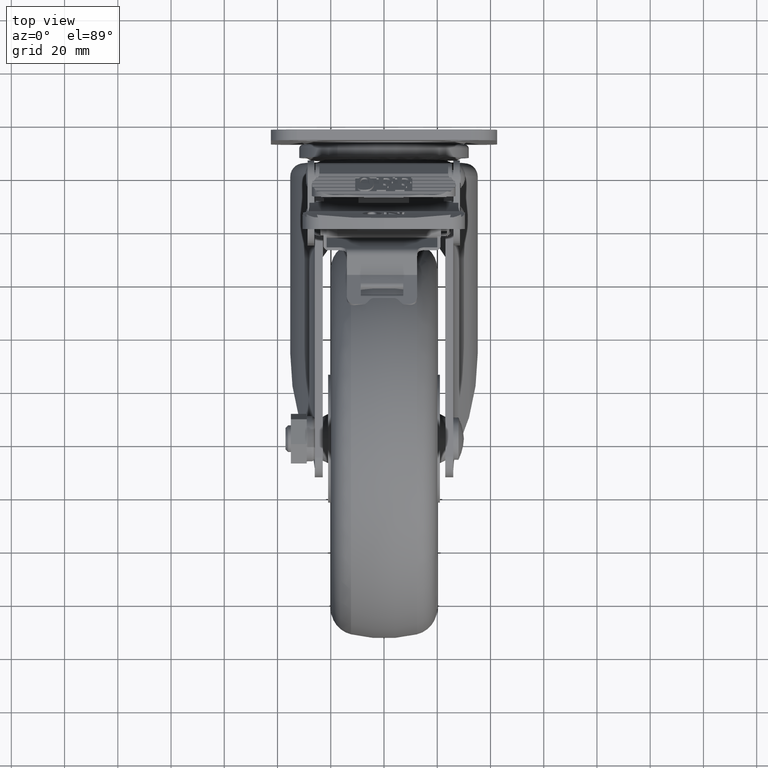
[diagram: clean part render]
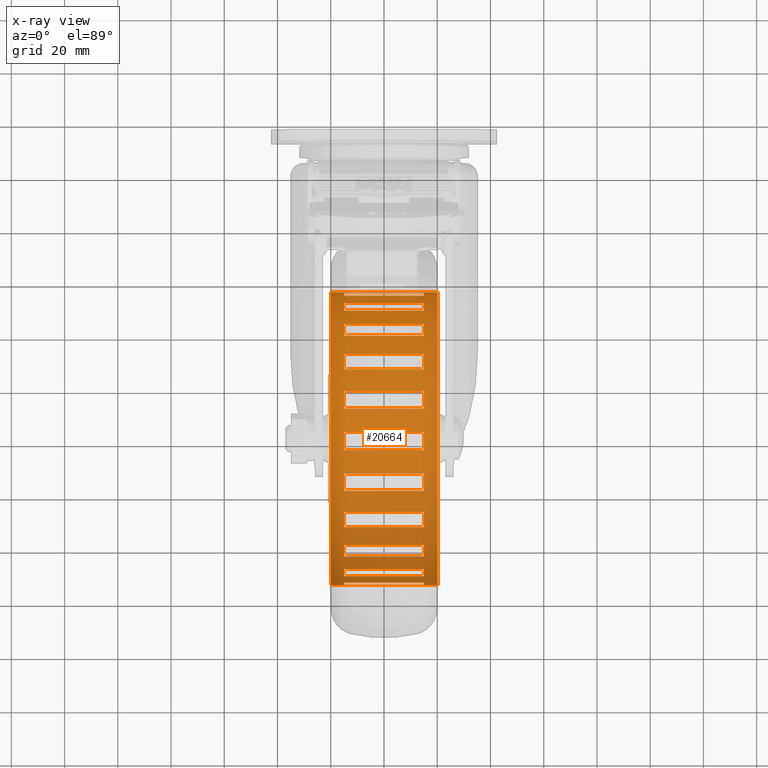
[diagram: x-ray — body ghosted, one internal face saturated and labeled with its STEP entity id]
A machine part, top view, then the same camera in x-ray: the body is ghosted and one INTERNAL B-rep face — a face not visible from any outside direction — is saturated and labeled: STEP entity #20664.
In plain terms, the highlighted cylindrical surface (partial cylindrical patch) has radius 55 mm, axis along (-1, -0, -0).
Its self-contained STEP definition (entity closure, byte-faithful):
#162 = CARTESIAN_POINT ( 'NONE',  ( 15.00000000000440000, -150.0118797441276400, 19.37380314463233700 ) ) ;
#260 = DIRECTION ( 'NONE',  ( 1.892425610156516600E-016, -1.000000000000000000, 0.0000000000000000000 ) ) ;
#293 = VERTEX_POINT ( 'NONE', #85384 ) ;
#298 = DIRECTION ( 'NONE',  ( -1.000000000000000000, -1.836970198721029700E-016, -0.0000000000000000000 ) ) ;
#792 = VERTEX_POINT ( 'NONE', #42565 ) ;
#947 = ORIENTED_EDGE ( 'NONE', *, *, #55617, .F. ) ;
#1113 = LINE ( 'NONE', #14931, #73403 ) ;
#1223 = DIRECTION ( 'NONE',  ( -1.000000000000000000, -1.836970198721030700E-016, -3.697785493223492300E-032 ) ) ;
#1334 = CARTESIAN_POINT ( 'NONE',  ( 15.00000000000438200, -50.13779242782970200, 13.28495078105055800 ) ) ;
#1574 = ORIENTED_EDGE ( 'NONE', *, *, #53724, .F. ) ;
#1778 = VECTOR ( 'NONE', #75460, 1000.000000000000000 ) ;
#1781 = ORIENTED_EDGE ( 'NONE', *, *, #21377, .T. ) ;
#2244 = CIRCLE ( 'NONE', #29645, 55.00000000000000700 ) ;
#2488 = CARTESIAN_POINT ( 'NONE',  ( 21.00100000000440300, -50.13779242782968000, 13.28495078105054700 ) ) ;
#2533 = CARTESIAN_POINT ( 'NONE',  ( -14.99999999999560000, -125.5490603879278800, -8.857795358108225200 ) ) ;
#4140 = VERTEX_POINT ( 'NONE', #78634 ) ;
#4559 = CARTESIAN_POINT ( 'NONE',  ( 20.00000000000439500, -98.68449323485782500, 39.13486066005969400 ) ) ;
#4709 = CARTESIAN_POINT ( 'NONE',  ( 15.00000000000438000, -47.35710672558816000, 19.37380314463195700 ) ) ;
#4746 = CARTESIAN_POINT ( 'NONE',  ( 15.00000000000439600, -131.1802041778447600, -5.238878987504816300 ) ) ;
#4958 = DIRECTION ( 'NONE',  ( -1.000000000000000000, -1.836970198721030700E-016, -0.0000000000000000000 ) ) ;
#5042 = CARTESIAN_POINT ( 'NONE',  ( -14.99999999999560500, -98.68449323485784000, 39.13486066005969400 ) ) ;
#5356 = ORIENTED_EDGE ( 'NONE', *, *, #62886, .T. ) ;
#5432 = CYLINDRICAL_SURFACE ( 'NONE', #35388, 54.99999999999999300 ) ;
#5730 = CARTESIAN_POINT ( 'NONE',  ( -14.99999999999560500, -98.68449323485784000, 39.13486066005969400 ) ) ;
#6051 = CARTESIAN_POINT ( 'NONE',  ( -24.87654320987217100, -43.68449323485784000, 39.13486066005970100 ) ) ;
#6292 = CIRCLE ( 'NONE', #65267, 54.99999999999999300 ) ;
#6329 = DIRECTION ( 'NONE',  ( -1.000000000000000000, -1.836970198721030700E-016, -3.697785493223492300E-032 ) ) ;
#7325 = CARTESIAN_POINT ( 'NONE',  ( -14.99999999999560500, -98.68449323485784000, 39.13486066005969400 ) ) ;
#7558 = DIRECTION ( 'NONE',  ( -1.000000000000000000, -1.836970198721029700E-016, -0.0000000000000000000 ) ) ;
#7654 = CARTESIAN_POINT ( 'NONE',  ( 15.00000000000439100, -98.68449323485782500, 39.13486066005969400 ) ) ;
#7699 = FACE_BOUND ( 'NONE', #60047, .T. ) ;
#7952 = DIRECTION ( 'NONE',  ( -1.000000000000000000, -1.836970198721029700E-016, -0.0000000000000000000 ) ) ;
#8095 = EDGE_CURVE ( 'NONE', #45110, #19245, #6292, .T. ) ;
#8221 = ORIENTED_EDGE ( 'NONE', *, *, #9146, .F. ) ;
#8532 = DIRECTION ( 'NONE',  ( -1.000000000000000000, -1.836970198721029700E-016, -4.930380657631323800E-032 ) ) ;
#8846 = DIRECTION ( 'NONE',  ( -1.000000000000000000, -1.836970198721029700E-016, -4.930380657631323800E-032 ) ) ;
#9007 = DIRECTION ( 'NONE',  ( -1.000000000000000000, -1.836970198721030200E-016, 0.0000000000000000000 ) ) ;
#9108 = LINE ( 'NONE', #29721, #83713 ) ;
#9146 = EDGE_CURVE ( 'NONE', #293, #26584, #59876, .T. ) ;
#9253 = CARTESIAN_POINT ( 'NONE',  ( 15.00000000000440000, -142.3654266847858300, 5.713668985570269100 ) ) ;
#9307 = ORIENTED_EDGE ( 'NONE', *, *, #72179, .T. ) ;
#9333 = CIRCLE ( 'NONE', #57280, 54.99999999999999300 ) ;
#9640 = AXIS2_PLACEMENT_3D ( 'NONE', #5730, #54828, #12829 ) ;
#9866 = FACE_BOUND ( 'NONE', #83191, .T. ) ;
#9906 = CARTESIAN_POINT ( 'NONE',  ( -19.99999999999561200, -98.68449323485784000, 39.13486066005969400 ) ) ;
#10002 = EDGE_LOOP ( 'NONE', ( #66506, #59372, #68349, #1781 ) ) ;
#10012 = VERTEX_POINT ( 'NONE', #40148 ) ;
#10055 = ORIENTED_EDGE ( 'NONE', *, *, #42030, .T. ) ;
#10147 = DIRECTION ( 'NONE',  ( -1.000000000000000000, -1.836970198721030200E-016, -1.232595164407830900E-032 ) ) ;
#10429 = CIRCLE ( 'NONE', #14948, 55.00000000000000700 ) ;
#11189 = EDGE_CURVE ( 'NONE', #24396, #88886, #67302, .T. ) ;
#11234 = DIRECTION ( 'NONE',  ( -1.000000000000000000, -1.836970198721029700E-016, -0.0000000000000000000 ) ) ;
#11355 = VERTEX_POINT ( 'NONE', #40790 ) ;
#11430 = VECTOR ( 'NONE', #77390, 1000.000000000000000 ) ;
#11644 = DIRECTION ( 'NONE',  ( 1.892425610156516600E-016, -1.000000000000000000, 0.0000000000000000000 ) ) ;
#11728 = DIRECTION ( 'NONE',  ( -1.000000000000000000, -1.836970198721029700E-016, -4.930380657631323800E-032 ) ) ;
#12124 = DIRECTION ( 'NONE',  ( 1.892425610156517100E-016, -1.000000000000000000, 0.0000000000000000000 ) ) ;
#12489 = CARTESIAN_POINT ( 'NONE',  ( -14.99999999999560900, -80.00661403997884200, -12.59653047512539300 ) ) ;
#12829 = DIRECTION ( 'NONE',  ( 1.892425610156517100E-016, -1.000000000000000000, 0.0000000000000000000 ) ) ;
#13321 = ORIENTED_EDGE ( 'NONE', *, *, #25475, .F. ) ;
#13496 = EDGE_CURVE ( 'NONE', #25515, #22453, #18386, .T. ) ;
#14218 = DIRECTION ( 'NONE',  ( -1.000000000000000000, -1.836970198721029700E-016, -0.0000000000000000000 ) ) ;
#14317 = FACE_BOUND ( 'NONE', #48131, .T. ) ;
#14398 = DIRECTION ( 'NONE',  ( 1.892425610156517100E-016, -1.000000000000000000, 0.0000000000000000000 ) ) ;
#14749 = DIRECTION ( 'NONE',  ( 1.892425610156516600E-016, -1.000000000000000000, 0.0000000000000000000 ) ) ;
#14815 = DIRECTION ( 'NONE',  ( -1.000000000000000000, -1.836970198721030400E-016, -9.860761315262647600E-032 ) ) ;
#14879 = EDGE_CURVE ( 'NONE', #50145, #60243, #43616, .T. ) ;
#14931 = CARTESIAN_POINT ( 'NONE',  ( 21.00100000000441400, -125.5490603879278500, -8.857795358108253600 ) ) ;
#14948 = AXIS2_PLACEMENT_3D ( 'NONE', #69970, #28087, #77076 ) ;
#14966 = ORIENTED_EDGE ( 'NONE', *, *, #34508, .F. ) ;
#15611 = CARTESIAN_POINT ( 'NONE',  ( 21.00100000000441400, -80.00661403997880000, -12.59653047512539300 ) ) ;
#15863 = VECTOR ( 'NONE', #8846, 1000.000000000000000 ) ;
#16344 = CARTESIAN_POINT ( 'NONE',  ( 15.00000000000439100, -98.68449323485782500, 39.13486066005969400 ) ) ;
#16554 = AXIS2_PLACEMENT_3D ( 'NONE', #7325, #56353, #14398 ) ;
#16907 = CARTESIAN_POINT ( 'NONE',  ( -14.99999999999560200, -131.1802041778447900, -5.238878987504843800 ) ) ;
#17018 = DIRECTION ( 'NONE',  ( 1.892425610156517100E-016, -1.000000000000000000, 0.0000000000000000000 ) ) ;
#17219 = CIRCLE ( 'NONE', #76179, 55.00000000000000700 ) ;
#17391 = CARTESIAN_POINT ( 'NONE',  ( -14.99999999999559600, -147.2311940418861700, 13.28495078105093300 ) ) ;
#18097 = CARTESIAN_POINT ( 'NONE',  ( 15.00000000000438600, -71.81992608178815400, -8.857795358108447200 ) ) ;
#18386 = LINE ( 'NONE', #41275, #72017 ) ;
#18492 = VERTEX_POINT ( 'NONE', #9253 ) ;
#18701 = CARTESIAN_POINT ( 'NONE',  ( -24.87654320987215300, -153.6844932348578300, 39.13486066005969400 ) ) ;
#18845 = CARTESIAN_POINT ( 'NONE',  ( 21.00100000000441000, -66.18878229187119200, -5.238878987505059600 ) ) ;
#18877 = ORIENTED_EDGE ( 'NONE', *, *, #22589, .T. ) ;
#18916 = EDGE_CURVE ( 'NONE', #49146, #10012, #31054, .T. ) ;
#18962 = ORIENTED_EDGE ( 'NONE', *, *, #62351, .F. ) ;
#19065 = ORIENTED_EDGE ( 'NONE', *, *, #32412, .F. ) ;
#19245 = VERTEX_POINT ( 'NONE', #25620 ) ;
#19661 = ORIENTED_EDGE ( 'NONE', *, *, #32287, .T. ) ;
#19818 = LINE ( 'NONE', #67871, #73395 ) ;
#20520 = CIRCLE ( 'NONE', #58432, 54.99999999999999300 ) ;
#20664 = ADVANCED_FACE ( 'NONE', ( #65784, #14317, #30810, #84475, #47224, #28599, #9866, #82259, #63630, #45035, #26369, #7699 ), #5432, .T. ) ;
#20776 = ORIENTED_EDGE ( 'NONE', *, *, #84513, .F. ) ;
#21377 = EDGE_CURVE ( 'NONE', #77672, #85580, #46545, .T. ) ;
#21432 = VERTEX_POINT ( 'NONE', #2533 ) ;
#21857 = AXIS2_PLACEMENT_3D ( 'NONE', #7654, #56708, #14749 ) ;
#22026 = CARTESIAN_POINT ( 'NONE',  ( 15.00000000000439500, -117.3623724297372300, -12.59653047512525200 ) ) ;
#22149 = DIRECTION ( 'NONE',  ( -1.000000000000000000, -1.836970198721029700E-016, -0.0000000000000000000 ) ) ;
#22453 = VERTEX_POINT ( 'NONE', #74930 ) ;
#22589 = EDGE_CURVE ( 'NONE', #47505, #86156, #44219, .T. ) ;
#22808 = AXIS2_PLACEMENT_3D ( 'NONE', #34061, #83008, #41107 ) ;
#23090 = VERTEX_POINT ( 'NONE', #76390 ) ;
#23418 = DIRECTION ( 'NONE',  ( 1.892425610156516600E-016, -1.000000000000000000, 0.0000000000000000000 ) ) ;
#23904 = VECTOR ( 'NONE', #52802, 1000.000000000000000 ) ;
#24326 = CARTESIAN_POINT ( 'NONE',  ( 21.00100000000441000, -95.33761647883081000, -15.76321231140230600 ) ) ;
#24396 = VERTEX_POINT ( 'NONE', #4709 ) ;
#24809 = EDGE_CURVE ( 'NONE', #32370, #45110, #88869, .T. ) ;
#25206 = CARTESIAN_POINT ( 'NONE',  ( -14.99999999999560500, -98.68449323485784000, 39.13486066005969400 ) ) ;
#25314 = ORIENTED_EDGE ( 'NONE', *, *, #52843, .T. ) ;
#25357 = CARTESIAN_POINT ( 'NONE',  ( 21.00100000000441400, -117.3623724297372300, -12.59653047512526000 ) ) ;
#25475 = EDGE_CURVE ( 'NONE', #26584, #89083, #67796, .T. ) ;
#25515 = VERTEX_POINT ( 'NONE', #82239 ) ;
#25516 = VECTOR ( 'NONE', #6329, 1000.000000000000000 ) ;
#25620 = CARTESIAN_POINT ( 'NONE',  ( -14.99999999999561100, -86.42922350190244200, -14.48237876694277700 ) ) ;
#25962 = LINE ( 'NONE', #24326, #46823 ) ;
#26369 = FACE_BOUND ( 'NONE', #62249, .T. ) ;
#26584 = VERTEX_POINT ( 'NONE', #43514 ) ;
#27081 = VECTOR ( 'NONE', #41750, 1000.000000000000000 ) ;
#27372 = EDGE_LOOP ( 'NONE', ( #1574, #53556, #90652, #55814 ) ) ;
#28087 = DIRECTION ( 'NONE',  ( -1.000000000000000000, -1.836970198721029700E-016, -0.0000000000000000000 ) ) ;
#28555 = ORIENTED_EDGE ( 'NONE', *, *, #24809, .T. ) ;
#28599 = FACE_BOUND ( 'NONE', #55733, .T. ) ;
#28732 = DIRECTION ( 'NONE',  ( -1.000000000000000000, -1.836970198721030400E-016, -4.930380657631323800E-032 ) ) ;
#28875 = EDGE_CURVE ( 'NONE', #69399, #46896, #82714, .T. ) ;
#29645 = AXIS2_PLACEMENT_3D ( 'NONE', #33582, #82532, #40629 ) ;
#29651 = ORIENTED_EDGE ( 'NONE', *, *, #8095, .T. ) ;
#29654 = EDGE_CURVE ( 'NONE', #86156, #60243, #62416, .T. ) ;
#29721 = CARTESIAN_POINT ( 'NONE',  ( 21.00100000000441400, -102.0313699908852500, -15.76321231140228500 ) ) ;
#30810 = FACE_BOUND ( 'NONE', #32856, .T. ) ;
#31054 = LINE ( 'NONE', #34336, #84738 ) ;
#31139 = EDGE_CURVE ( 'NONE', #61541, #66189, #58924, .T. ) ;
#31871 = CARTESIAN_POINT ( 'NONE',  ( -14.99999999999560500, -98.68449323485784000, 39.13486066005969400 ) ) ;
#32078 = LINE ( 'NONE', #18845, #67055 ) ;
#32181 = DIRECTION ( 'NONE',  ( -1.000000000000000000, -1.836970198721029700E-016, -0.0000000000000000000 ) ) ;
#32267 = DIRECTION ( 'NONE',  ( 1.892425610156517100E-016, -1.000000000000000000, 0.0000000000000000000 ) ) ;
#32287 = EDGE_CURVE ( 'NONE', #90042, #53590, #68498, .T. ) ;
#32370 = VERTEX_POINT ( 'NONE', #55327 ) ;
#32404 = DIRECTION ( 'NONE',  ( -1.000000000000000000, -1.836970198721030400E-016, -4.930380657631323800E-032 ) ) ;
#32412 = EDGE_CURVE ( 'NONE', #25515, #23090, #10429, .T. ) ;
#32487 = VERTEX_POINT ( 'NONE', #22026 ) ;
#32542 = CARTESIAN_POINT ( 'NONE',  ( -14.99999999999560500, -117.3623724297372300, -12.59653047512526000 ) ) ;
#32856 = EDGE_LOOP ( 'NONE', ( #87250, #18877, #85116, #63199 ) ) ;
#33032 = VECTOR ( 'NONE', #8532, 1000.000000000000000 ) ;
#33233 = CARTESIAN_POINT ( 'NONE',  ( -14.99999999999561400, -47.35710672558818900, 19.37380314463193500 ) ) ;
#33308 = CIRCLE ( 'NONE', #38480, 54.99999999999999300 ) ;
#33524 = ORIENTED_EDGE ( 'NONE', *, *, #56445, .F. ) ;
#33582 = CARTESIAN_POINT ( 'NONE',  ( 15.00000000000439100, -98.68449323485782500, 39.13486066005969400 ) ) ;
#33774 = ORIENTED_EDGE ( 'NONE', *, *, #43002, .T. ) ;
#33852 = EDGE_LOOP ( 'NONE', ( #66256, #85739, #19065, #64495 ) ) ;
#34061 = CARTESIAN_POINT ( 'NONE',  ( 15.00000000000439100, -98.68449323485782500, 39.13486066005969400 ) ) ;
#34336 = CARTESIAN_POINT ( 'NONE',  ( 21.00100000000440300, -44.82151371401528900, 28.00923990716241400 ) ) ;
#34508 = EDGE_CURVE ( 'NONE', #11355, #32487, #64817, .T. ) ;
#34996 = EDGE_LOOP ( 'NONE', ( #73373, #40329, #10055, #69739 ) ) ;
#35388 = AXIS2_PLACEMENT_3D ( 'NONE', #84493, #7558, #56608 ) ;
#35690 = CARTESIAN_POINT ( 'NONE',  ( 21.00100000000441000, -86.42922350190244200, -14.48237876694277700 ) ) ;
#35938 = LINE ( 'NONE', #70736, #54446 ) ;
#36059 = DIRECTION ( 'NONE',  ( -1.000000000000000000, -1.836970198721029700E-016, -0.0000000000000000000 ) ) ;
#36669 = CARTESIAN_POINT ( 'NONE',  ( -14.99999999999559500, -152.5474727557004500, 28.00923990716283300 ) ) ;
#37313 = DIRECTION ( 'NONE',  ( -1.000000000000000000, -1.836970198721029700E-016, -0.0000000000000000000 ) ) ;
#37557 = CARTESIAN_POINT ( 'NONE',  ( 20.00000000000440500, -153.6844932348578300, 39.13486066005969400 ) ) ;
#38480 = AXIS2_PLACEMENT_3D ( 'NONE', #79212, #37313, #86264 ) ;
#38659 = CARTESIAN_POINT ( 'NONE',  ( 15.00000000000437900, -137.9819503470330600, 0.6548676180027426200 ) ) ;
#38939 = DIRECTION ( 'NONE',  ( 1.892425610156517100E-016, -1.000000000000000000, 0.0000000000000000000 ) ) ;
#39071 = CARTESIAN_POINT ( 'NONE',  ( 21.00100000000442100, -131.1802041778447900, -5.238878987504843800 ) ) ;
#39140 = LINE ( 'NONE', #81987, #1778 ) ;
#39223 = VECTOR ( 'NONE', #84630, 1000.000000000000000 ) ;
#39367 = CIRCLE ( 'NONE', #81772, 54.99999999999999300 ) ;
#39946 = ORIENTED_EDGE ( 'NONE', *, *, #31139, .F. ) ;
#40108 = AXIS2_PLACEMENT_3D ( 'NONE', #4559, #53646, #11644 ) ;
#40148 = CARTESIAN_POINT ( 'NONE',  ( -14.99999999999562000, -44.82151371401529600, 28.00923990716241400 ) ) ;
#40329 = ORIENTED_EDGE ( 'NONE', *, *, #11189, .T. ) ;
#40629 = DIRECTION ( 'NONE',  ( 1.892425610156516600E-016, -1.000000000000000000, 0.0000000000000000000 ) ) ;
#40790 = CARTESIAN_POINT ( 'NONE',  ( 15.00000000000438400, -110.9397629678136200, -14.48237876694268800 ) ) ;
#41107 = DIRECTION ( 'NONE',  ( 1.892425610156516600E-016, -1.000000000000000000, 0.0000000000000000000 ) ) ;
#41275 = CARTESIAN_POINT ( 'NONE',  ( 21.00100000000440300, -55.00355978493006100, 5.713668985569943200 ) ) ;
#41295 = DIRECTION ( 'NONE',  ( -1.000000000000000000, -1.836970198721029700E-016, -0.0000000000000000000 ) ) ;
#41435 = DIRECTION ( 'NONE',  ( -1.000000000000000000, -1.836970198721029700E-016, -0.0000000000000000000 ) ) ;
#41750 = DIRECTION ( 'NONE',  ( -1.000000000000000000, -1.836970198721030400E-016, 0.0000000000000000000 ) ) ;
#41802 = VERTEX_POINT ( 'NONE', #75508 ) ;
#41985 = CARTESIAN_POINT ( 'NONE',  ( 15.00000000000438000, -44.82151371401530300, 28.00923990716241400 ) ) ;
#42030 = EDGE_CURVE ( 'NONE', #88886, #52253, #33308, .T. ) ;
#42325 = EDGE_CURVE ( 'NONE', #11355, #90042, #90182, .T. ) ;
#42379 = DIRECTION ( 'NONE',  ( -1.000000000000000000, -1.836970198721029700E-016, -0.0000000000000000000 ) ) ;
#42420 = CARTESIAN_POINT ( 'NONE',  ( 15.00000000000439100, -98.68449323485782500, 39.13486066005969400 ) ) ;
#42565 = CARTESIAN_POINT ( 'NONE',  ( -14.99999999999560500, -95.33761647883083900, -15.76321231140229900 ) ) ;
#42714 = EDGE_CURVE ( 'NONE', #22453, #60240, #68172, .T. ) ;
#43002 = EDGE_CURVE ( 'NONE', #69399, #71432, #32078, .T. ) ;
#43336 = CARTESIAN_POINT ( 'NONE',  ( 15.00000000000438400, -95.33761647883081000, -15.76321231140230600 ) ) ;
#43514 = CARTESIAN_POINT ( 'NONE',  ( 15.00000000000440200, -153.5000932042096300, 34.63486066005970800 ) ) ;
#43616 = LINE ( 'NONE', #90945, #27081 ) ;
#43810 = EDGE_CURVE ( 'NONE', #75543, #43896, #79063, .T. ) ;
#43861 = DIRECTION ( 'NONE',  ( -1.000000000000000000, -1.836970198721030400E-016, -9.860761315262647600E-032 ) ) ;
#43896 = VERTEX_POINT ( 'NONE', #73873 ) ;
#44219 = LINE ( 'NONE', #90269, #25516 ) ;
#44547 = EDGE_CURVE ( 'NONE', #47505, #50145, #45010, .T. ) ;
#44885 = AXIS2_PLACEMENT_3D ( 'NONE', #5042, #54119, #12124 ) ;
#44964 = LINE ( 'NONE', #18701, #79987 ) ;
#45010 = CIRCLE ( 'NONE', #22808, 55.00000000000000700 ) ;
#45035 = FACE_BOUND ( 'NONE', #33852, .T. ) ;
#45110 = VERTEX_POINT ( 'NONE', #12489 ) ;
#45488 = CIRCLE ( 'NONE', #87272, 55.00000000000000700 ) ;
#46175 = LINE ( 'NONE', #25357, #62561 ) ;
#46545 = LINE ( 'NONE', #58056, #67262 ) ;
#46637 = EDGE_CURVE ( 'NONE', #55961, #49146, #17219, .T. ) ;
#46759 = CARTESIAN_POINT ( 'NONE',  ( 21.00100000000442100, -153.5000932042096600, 34.63486066005970800 ) ) ;
#46823 = VECTOR ( 'NONE', #73216, 1000.000000000000000 ) ;
#46896 = VERTEX_POINT ( 'NONE', #18097 ) ;
#47224 = FACE_BOUND ( 'NONE', #54683, .T. ) ;
#47274 = CARTESIAN_POINT ( 'NONE',  ( -14.99999999999561600, -59.38703612268288600, 0.6548676180024790600 ) ) ;
#47505 = VERTEX_POINT ( 'NONE', #77571 ) ;
#48131 = EDGE_LOOP ( 'NONE', ( #50877, #13321, #8221, #53872 ) ) ;
#48697 = CARTESIAN_POINT ( 'NONE',  ( -14.99999999999561400, -71.81992608178816800, -8.857795358108447200 ) ) ;
#49146 = VERTEX_POINT ( 'NONE', #41985 ) ;
#49419 = DIRECTION ( 'NONE',  ( 1.892425610156516600E-016, -1.000000000000000000, 0.0000000000000000000 ) ) ;
#49901 = VERTEX_POINT ( 'NONE', #59689 ) ;
#49987 = CARTESIAN_POINT ( 'NONE',  ( -14.99999999999560500, -98.68449323485784000, 39.13486066005969400 ) ) ;
#50145 = VERTEX_POINT ( 'NONE', #162 ) ;
#50170 = VECTOR ( 'NONE', #41435, 1000.000000000000000 ) ;
#50715 = AXIS2_PLACEMENT_3D ( 'NONE', #61620, #61512, #61399 ) ;
#50877 = ORIENTED_EDGE ( 'NONE', *, *, #78971, .T. ) ;
#51082 = VERTEX_POINT ( 'NONE', #55225 ) ;
#52253 = VERTEX_POINT ( 'NONE', #56262 ) ;
#52563 = EDGE_CURVE ( 'NONE', #41802, #61541, #2244, .T. ) ;
#52802 = DIRECTION ( 'NONE',  ( -1.000000000000000000, -1.836970198721030200E-016, 0.0000000000000000000 ) ) ;
#52843 = EDGE_CURVE ( 'NONE', #41802, #21432, #1113, .T. ) ;
#53098 = LINE ( 'NONE', #85788, #15863 ) ;
#53235 = CARTESIAN_POINT ( 'NONE',  ( 15.00000000000439100, -98.68449323485782500, 39.13486066005969400 ) ) ;
#53556 = ORIENTED_EDGE ( 'NONE', *, *, #87858, .T. ) ;
#53590 = VERTEX_POINT ( 'NONE', #32542 ) ;
#53646 = DIRECTION ( 'NONE',  ( -1.000000000000000000, -1.836970198721029700E-016, -0.0000000000000000000 ) ) ;
#53724 = EDGE_CURVE ( 'NONE', #80926, #75543, #68679, .T. ) ;
#53872 = ORIENTED_EDGE ( 'NONE', *, *, #74083, .T. ) ;
#54119 = DIRECTION ( 'NONE',  ( -1.000000000000000000, -1.836970198721029700E-016, -0.0000000000000000000 ) ) ;
#54446 = VECTOR ( 'NONE', #1223, 1000.000000000000000 ) ;
#54678 = AXIS2_PLACEMENT_3D ( 'NONE', #49987, #7952, #57009 ) ;
#54683 = EDGE_LOOP ( 'NONE', ( #29651, #18962, #86121, #28555 ) ) ;
#54828 = DIRECTION ( 'NONE',  ( -1.000000000000000000, -1.836970198721029700E-016, -0.0000000000000000000 ) ) ;
#55225 = CARTESIAN_POINT ( 'NONE',  ( 15.00000000000438900, -86.42922350190244200, -14.48237876694276900 ) ) ;
#55327 = CARTESIAN_POINT ( 'NONE',  ( 15.00000000000438000, -80.00661403997880000, -12.59653047512539300 ) ) ;
#55617 = EDGE_CURVE ( 'NONE', #67893, #49901, #45488, .T. ) ;
#55699 = CARTESIAN_POINT ( 'NONE',  ( -19.99999999999562300, -43.68449323485784000, 39.13486066005970100 ) ) ;
#55733 = EDGE_LOOP ( 'NONE', ( #947, #85371, #60178, #33524 ) ) ;
#55764 = EDGE_CURVE ( 'NONE', #23090, #60240, #53098, .T. ) ;
#55814 = ORIENTED_EDGE ( 'NONE', *, *, #43810, .F. ) ;
#55961 = VERTEX_POINT ( 'NONE', #67584 ) ;
#56172 = CARTESIAN_POINT ( 'NONE',  ( -14.99999999999560500, -98.68449323485784000, 39.13486066005969400 ) ) ;
#56262 = CARTESIAN_POINT ( 'NONE',  ( -14.99999999999561800, -50.13779242782968700, 13.28495078105054700 ) ) ;
#56353 = DIRECTION ( 'NONE',  ( -1.000000000000000000, -1.836970198721029700E-016, -0.0000000000000000000 ) ) ;
#56445 = EDGE_CURVE ( 'NONE', #49901, #4140, #9108, .T. ) ;
#56608 = DIRECTION ( 'NONE',  ( 1.892425610156517100E-016, -1.000000000000000000, 0.0000000000000000000 ) ) ;
#56708 = DIRECTION ( 'NONE',  ( -1.000000000000000000, -1.836970198721029700E-016, -0.0000000000000000000 ) ) ;
#57009 = DIRECTION ( 'NONE',  ( 1.892425610156517100E-016, -1.000000000000000000, 0.0000000000000000000 ) ) ;
#57225 = VERTEX_POINT ( 'NONE', #67419 ) ;
#57280 = AXIS2_PLACEMENT_3D ( 'NONE', #31871, #80858, #38939 ) ;
#58056 = CARTESIAN_POINT ( 'NONE',  ( 21.00100000000442100, -137.9819503470330600, 0.6548676180027426200 ) ) ;
#58432 = AXIS2_PLACEMENT_3D ( 'NONE', #74019, #32181, #81148 ) ;
#58924 = LINE ( 'NONE', #39071, #23904 ) ;
#58977 = DIRECTION ( 'NONE',  ( -1.000000000000000000, -1.836970198721029700E-016, -0.0000000000000000000 ) ) ;
#59295 = ORIENTED_EDGE ( 'NONE', *, *, #18916, .F. ) ;
#59372 = ORIENTED_EDGE ( 'NONE', *, *, #63569, .F. ) ;
#59689 = CARTESIAN_POINT ( 'NONE',  ( 15.00000000000439100, -102.0313699908852500, -15.76321231140227800 ) ) ;
#59876 = CIRCLE ( 'NONE', #50715, 55.00000000000000700 ) ;
#60047 = EDGE_LOOP ( 'NONE', ( #19661, #20776, #14966, #74265 ) ) ;
#60178 = ORIENTED_EDGE ( 'NONE', *, *, #68557, .T. ) ;
#60240 = VERTEX_POINT ( 'NONE', #47274 ) ;
#60243 = VERTEX_POINT ( 'NONE', #68286 ) ;
#60270 = DIRECTION ( 'NONE',  ( 1.892425610156516600E-016, -1.000000000000000000, 0.0000000000000000000 ) ) ;
#60810 = CARTESIAN_POINT ( 'NONE',  ( -14.99999999999560000, -142.3654266847858600, 5.713668985570255800 ) ) ;
#60866 = DIRECTION ( 'NONE',  ( -1.000000000000000000, -1.836970198721030400E-016, 0.0000000000000000000 ) ) ;
#61187 = CARTESIAN_POINT ( 'NONE',  ( -14.99999999999560400, -110.9397629678136500, -14.48237876694267400 ) ) ;
#61399 = DIRECTION ( 'NONE',  ( 1.892425610156516600E-016, -1.000000000000000000, 0.0000000000000000000 ) ) ;
#61512 = DIRECTION ( 'NONE',  ( -1.000000000000000000, -1.836970198721029700E-016, -0.0000000000000000000 ) ) ;
#61541 = VERTEX_POINT ( 'NONE', #4746 ) ;
#61620 = CARTESIAN_POINT ( 'NONE',  ( 15.00000000000439100, -98.68449323485782500, 39.13486066005969400 ) ) ;
#62127 = CARTESIAN_POINT ( 'NONE',  ( -14.99999999999559800, -137.9819503470330600, 0.6548676180027843700 ) ) ;
#62249 = EDGE_LOOP ( 'NONE', ( #78830, #25314, #9307, #39946 ) ) ;
#62351 = EDGE_CURVE ( 'NONE', #51082, #19245, #72000, .T. ) ;
#62416 = CIRCLE ( 'NONE', #16554, 54.99999999999999300 ) ;
#62561 = VECTOR ( 'NONE', #32404, 1000.000000000000000 ) ;
#62643 = DIRECTION ( 'NONE',  ( -1.000000000000000000, -1.836970198721029700E-016, -0.0000000000000000000 ) ) ;
#62886 = EDGE_CURVE ( 'NONE', #55961, #57225, #39140, .T. ) ;
#63199 = ORIENTED_EDGE ( 'NONE', *, *, #14879, .F. ) ;
#63242 = DIRECTION ( 'NONE',  ( 1.892425610156517100E-016, -1.000000000000000000, 0.0000000000000000000 ) ) ;
#63339 = CARTESIAN_POINT ( 'NONE',  ( -14.99999999999561100, -66.18878229187123500, -5.238878987505065900 ) ) ;
#63416 = AXIS2_PLACEMENT_3D ( 'NONE', #25206, #74116, #32267 ) ;
#63569 = EDGE_CURVE ( 'NONE', #18492, #90409, #35938, .T. ) ;
#63630 = FACE_BOUND ( 'NONE', #79844, .T. ) ;
#63816 = EDGE_CURVE ( 'NONE', #71432, #77881, #20520, .T. ) ;
#64013 = CARTESIAN_POINT ( 'NONE',  ( -14.99999999999560500, -98.68449323485784000, 39.13486066005969400 ) ) ;
#64495 = ORIENTED_EDGE ( 'NONE', *, *, #13496, .T. ) ;
#64611 = AXIS2_PLACEMENT_3D ( 'NONE', #56172, #14218, #63242 ) ;
#64817 = CIRCLE ( 'NONE', #73067, 55.00000000000000700 ) ;
#65210 = CARTESIAN_POINT ( 'NONE',  ( 20.00000000000438400, -43.68449323485781800, 39.13486066005970100 ) ) ;
#65267 = AXIS2_PLACEMENT_3D ( 'NONE', #67811, #62643, #68389 ) ;
#65288 = DIRECTION ( 'NONE',  ( -1.000000000000000000, -1.836970198721029700E-016, -0.0000000000000000000 ) ) ;
#65492 = AXIS2_PLACEMENT_3D ( 'NONE', #9906, #58977, #17018 ) ;
#65784 = FACE_OUTER_BOUND ( 'NONE', #27372, .T. ) ;
#66143 = AXIS2_PLACEMENT_3D ( 'NONE', #83204, #41295, #90194 ) ;
#66189 = VERTEX_POINT ( 'NONE', #16907 ) ;
#66256 = ORIENTED_EDGE ( 'NONE', *, *, #42714, .T. ) ;
#66506 = ORIENTED_EDGE ( 'NONE', *, *, #89943, .T. ) ;
#67055 = VECTOR ( 'NONE', #11728, 1000.000000000000000 ) ;
#67262 = VECTOR ( 'NONE', #9007, 1000.000000000000000 ) ;
#67302 = LINE ( 'NONE', #74181, #11430 ) ;
#67419 = CARTESIAN_POINT ( 'NONE',  ( -14.99999999999562000, -43.86889326550603800, 34.63486066005971500 ) ) ;
#67488 = VERTEX_POINT ( 'NONE', #37557 ) ;
#67530 = CIRCLE ( 'NONE', #66143, 55.00000000000000700 ) ;
#67584 = CARTESIAN_POINT ( 'NONE',  ( 15.00000000000440200, -43.86889326550603100, 34.63486066005971500 ) ) ;
#67620 = DIRECTION ( 'NONE',  ( -1.000000000000000000, -1.836970198721029700E-016, -0.0000000000000000000 ) ) ;
#67796 = LINE ( 'NONE', #46759, #84325 ) ;
#67811 = CARTESIAN_POINT ( 'NONE',  ( -14.99999999999560500, -98.68449323485784000, 39.13486066005969400 ) ) ;
#67871 = CARTESIAN_POINT ( 'NONE',  ( 21.00100000000442400, -152.5474727557004500, 28.00923990716280100 ) ) ;
#67893 = VERTEX_POINT ( 'NONE', #43336 ) ;
#68132 = VECTOR ( 'NONE', #89770, 1000.000000000000000 ) ;
#68172 = CIRCLE ( 'NONE', #9640, 54.99999999999999300 ) ;
#68286 = CARTESIAN_POINT ( 'NONE',  ( -14.99999999999560000, -150.0118797441276700, 19.37380314463233000 ) ) ;
#68349 = ORIENTED_EDGE ( 'NONE', *, *, #80068, .F. ) ;
#68389 = DIRECTION ( 'NONE',  ( 1.892425610156517100E-016, -1.000000000000000000, 0.0000000000000000000 ) ) ;
#68498 = CIRCLE ( 'NONE', #44885, 54.99999999999999300 ) ;
#68557 = EDGE_CURVE ( 'NONE', #792, #4140, #71660, .T. ) ;
#68679 = LINE ( 'NONE', #6051, #50170 ) ;
#69158 = ORIENTED_EDGE ( 'NONE', *, *, #86913, .F. ) ;
#69307 = VECTOR ( 'NONE', #14815, 1000.000000000000000 ) ;
#69399 = VERTEX_POINT ( 'NONE', #86004 ) ;
#69739 = ORIENTED_EDGE ( 'NONE', *, *, #80484, .F. ) ;
#69970 = CARTESIAN_POINT ( 'NONE',  ( 15.00000000000439100, -98.68449323485782500, 39.13486066005969400 ) ) ;
#70736 = CARTESIAN_POINT ( 'NONE',  ( 21.00100000000442400, -142.3654266847858600, 5.713668985570255800 ) ) ;
#70882 = ORIENTED_EDGE ( 'NONE', *, *, #87003, .T. ) ;
#71024 = DIRECTION ( 'NONE',  ( 1.892425610156517100E-016, -1.000000000000000000, 0.0000000000000000000 ) ) ;
#71432 = VERTEX_POINT ( 'NONE', #63339 ) ;
#71660 = CIRCLE ( 'NONE', #63416, 54.99999999999999300 ) ;
#71755 = ORIENTED_EDGE ( 'NONE', *, *, #46637, .F. ) ;
#72000 = LINE ( 'NONE', #35690, #39223 ) ;
#72017 = VECTOR ( 'NONE', #90174, 1000.000000000000000 ) ;
#72179 = EDGE_CURVE ( 'NONE', #21432, #66189, #39367, .T. ) ;
#73067 = AXIS2_PLACEMENT_3D ( 'NONE', #16344, #65288, #23418 ) ;
#73216 = DIRECTION ( 'NONE',  ( -1.000000000000000000, -1.836970198721030200E-016, -4.930380657631323800E-032 ) ) ;
#73373 = ORIENTED_EDGE ( 'NONE', *, *, #74013, .F. ) ;
#73395 = VECTOR ( 'NONE', #60866, 1000.000000000000000 ) ;
#73403 = VECTOR ( 'NONE', #28732, 1000.000000000000000 ) ;
#73413 = EDGE_CURVE ( 'NONE', #67893, #792, #25962, .T. ) ;
#73873 = CARTESIAN_POINT ( 'NONE',  ( -19.99999999999560200, -153.6844932348578300, 39.13486066005969400 ) ) ;
#74013 = EDGE_CURVE ( 'NONE', #24396, #76267, #82266, .T. ) ;
#74019 = CARTESIAN_POINT ( 'NONE',  ( -14.99999999999560500, -98.68449323485784000, 39.13486066005969400 ) ) ;
#74083 = EDGE_CURVE ( 'NONE', #293, #83259, #19818, .T. ) ;
#74116 = DIRECTION ( 'NONE',  ( -1.000000000000000000, -1.836970198721029700E-016, -0.0000000000000000000 ) ) ;
#74181 = CARTESIAN_POINT ( 'NONE',  ( 21.00100000000440300, -47.35710672558816000, 19.37380314463195700 ) ) ;
#74265 = ORIENTED_EDGE ( 'NONE', *, *, #42325, .T. ) ;
#74722 = LINE ( 'NONE', #82755, #68132 ) ;
#74930 = CARTESIAN_POINT ( 'NONE',  ( -14.99999999999561400, -55.00355978493010400, 5.713668985569936100 ) ) ;
#75460 = DIRECTION ( 'NONE',  ( -1.000000000000000000, -1.836970198721029700E-016, -0.0000000000000000000 ) ) ;
#75508 = CARTESIAN_POINT ( 'NONE',  ( 15.00000000000438000, -125.5490603879278500, -8.857795358108253600 ) ) ;
#75543 = VERTEX_POINT ( 'NONE', #55699 ) ;
#75745 = ORIENTED_EDGE ( 'NONE', *, *, #28875, .F. ) ;
#76179 = AXIS2_PLACEMENT_3D ( 'NONE', #42420, #298, #49419 ) ;
#76267 = VERTEX_POINT ( 'NONE', #1334 ) ;
#76286 = VECTOR ( 'NONE', #10147, 1000.000000000000000 ) ;
#76390 = CARTESIAN_POINT ( 'NONE',  ( 15.00000000000438400, -59.38703612268289300, 0.6548676180024859400 ) ) ;
#76799 = CIRCLE ( 'NONE', #40108, 55.00000000000000700 ) ;
#76807 = EDGE_CURVE ( 'NONE', #32370, #51082, #67530, .T. ) ;
#77076 = DIRECTION ( 'NONE',  ( 1.892425610156516600E-016, -1.000000000000000000, 0.0000000000000000000 ) ) ;
#77390 = DIRECTION ( 'NONE',  ( -1.000000000000000000, -1.836970198721029700E-016, -1.232595164407830900E-032 ) ) ;
#77571 = CARTESIAN_POINT ( 'NONE',  ( 15.00000000000437900, -147.2311940418861700, 13.28495078105090100 ) ) ;
#77672 = VERTEX_POINT ( 'NONE', #38659 ) ;
#77881 = VERTEX_POINT ( 'NONE', #48697 ) ;
#77909 = CARTESIAN_POINT ( 'NONE',  ( 15.00000000000439100, -98.68449323485782500, 39.13486066005969400 ) ) ;
#78046 = CIRCLE ( 'NONE', #54678, 54.99999999999999300 ) ;
#78537 = LINE ( 'NONE', #2488, #76286 ) ;
#78634 = CARTESIAN_POINT ( 'NONE',  ( -14.99999999999560700, -102.0313699908852500, -15.76321231140228500 ) ) ;
#78830 = ORIENTED_EDGE ( 'NONE', *, *, #52563, .F. ) ;
#78955 = AXIS2_PLACEMENT_3D ( 'NONE', #53235, #11234, #60270 ) ;
#78971 = EDGE_CURVE ( 'NONE', #83259, #89083, #82046, .T. ) ;
#79063 = CIRCLE ( 'NONE', #65492, 54.99999999999999300 ) ;
#79212 = CARTESIAN_POINT ( 'NONE',  ( -14.99999999999560500, -98.68449323485784000, 39.13486066005969400 ) ) ;
#79732 = CARTESIAN_POINT ( 'NONE',  ( -14.99999999999559800, -153.5000932042096600, 34.63486066005970800 ) ) ;
#79844 = EDGE_LOOP ( 'NONE', ( #75745, #33774, #85907, #69158 ) ) ;
#79987 = VECTOR ( 'NONE', #67620, 1000.000000000000000 ) ;
#80068 = EDGE_CURVE ( 'NONE', #77672, #18492, #81869, .T. ) ;
#80484 = EDGE_CURVE ( 'NONE', #76267, #52253, #78537, .T. ) ;
#80858 = DIRECTION ( 'NONE',  ( -1.000000000000000000, -1.836970198721029700E-016, -0.0000000000000000000 ) ) ;
#80926 = VERTEX_POINT ( 'NONE', #65210 ) ;
#81117 = AXIS2_PLACEMENT_3D ( 'NONE', #77909, #36059, #84971 ) ;
#81148 = DIRECTION ( 'NONE',  ( 1.892425610156517100E-016, -1.000000000000000000, 0.0000000000000000000 ) ) ;
#81772 = AXIS2_PLACEMENT_3D ( 'NONE', #64013, #22149, #71024 ) ;
#81869 = CIRCLE ( 'NONE', #81117, 55.00000000000000700 ) ;
#81987 = CARTESIAN_POINT ( 'NONE',  ( 21.00100000000440300, -43.86889326550603100, 34.63486066005971500 ) ) ;
#82046 = CIRCLE ( 'NONE', #64611, 54.99999999999999300 ) ;
#82239 = CARTESIAN_POINT ( 'NONE',  ( 15.00000000000437900, -55.00355978493006100, 5.713668985569943200 ) ) ;
#82259 = FACE_BOUND ( 'NONE', #34996, .T. ) ;
#82266 = CIRCLE ( 'NONE', #78955, 55.00000000000000700 ) ;
#82532 = DIRECTION ( 'NONE',  ( -1.000000000000000000, -1.836970198721029700E-016, -0.0000000000000000000 ) ) ;
#82714 = CIRCLE ( 'NONE', #21857, 55.00000000000000700 ) ;
#82755 = CARTESIAN_POINT ( 'NONE',  ( 21.00100000000441400, -71.81992608178815400, -8.857795358108447200 ) ) ;
#82969 = DIRECTION ( 'NONE',  ( -1.000000000000000000, -1.836970198721029700E-016, -1.232595164407830900E-032 ) ) ;
#83008 = DIRECTION ( 'NONE',  ( -1.000000000000000000, -1.836970198721029700E-016, -0.0000000000000000000 ) ) ;
#83191 = EDGE_LOOP ( 'NONE', ( #70882, #59295, #71755, #5356 ) ) ;
#83204 = CARTESIAN_POINT ( 'NONE',  ( 15.00000000000439100, -98.68449323485782500, 39.13486066005969400 ) ) ;
#83259 = VERTEX_POINT ( 'NONE', #36669 ) ;
#83713 = VECTOR ( 'NONE', #43861, 1000.000000000000000 ) ;
#84286 = CARTESIAN_POINT ( 'NONE',  ( 15.00000000000439100, -98.68449323485782500, 39.13486066005969400 ) ) ;
#84325 = VECTOR ( 'NONE', #4958, 1000.000000000000000 ) ;
#84475 = FACE_BOUND ( 'NONE', #10002, .T. ) ;
#84493 = CARTESIAN_POINT ( 'NONE',  ( -24.87654320987216400, -98.68449323485784000, 39.13486066005969400 ) ) ;
#84513 = EDGE_CURVE ( 'NONE', #32487, #53590, #46175, .T. ) ;
#84630 = DIRECTION ( 'NONE',  ( -1.000000000000000000, -1.836970198721030200E-016, -4.930380657631323800E-032 ) ) ;
#84657 = CARTESIAN_POINT ( 'NONE',  ( 21.00100000000441400, -110.9397629678136200, -14.48237876694268800 ) ) ;
#84738 = VECTOR ( 'NONE', #82969, 1000.000000000000000 ) ;
#84971 = DIRECTION ( 'NONE',  ( 1.892425610156516600E-016, -1.000000000000000000, 0.0000000000000000000 ) ) ;
#85116 = ORIENTED_EDGE ( 'NONE', *, *, #29654, .T. ) ;
#85371 = ORIENTED_EDGE ( 'NONE', *, *, #73413, .T. ) ;
#85384 = CARTESIAN_POINT ( 'NONE',  ( 15.00000000000438000, -152.5474727557004500, 28.00923990716280100 ) ) ;
#85450 = EDGE_CURVE ( 'NONE', #67488, #43896, #44964, .T. ) ;
#85580 = VERTEX_POINT ( 'NONE', #62127 ) ;
#85739 = ORIENTED_EDGE ( 'NONE', *, *, #55764, .F. ) ;
#85788 = CARTESIAN_POINT ( 'NONE',  ( 21.00100000000441000, -59.38703612268287900, 0.6548676180024790600 ) ) ;
#85907 = ORIENTED_EDGE ( 'NONE', *, *, #63816, .T. ) ;
#86004 = CARTESIAN_POINT ( 'NONE',  ( 15.00000000000437900, -66.18878229187119200, -5.238878987505059600 ) ) ;
#86121 = ORIENTED_EDGE ( 'NONE', *, *, #76807, .F. ) ;
#86156 = VERTEX_POINT ( 'NONE', #17391 ) ;
#86264 = DIRECTION ( 'NONE',  ( 1.892425610156517100E-016, -1.000000000000000000, 0.0000000000000000000 ) ) ;
#86913 = EDGE_CURVE ( 'NONE', #46896, #77881, #74722, .T. ) ;
#87003 = EDGE_CURVE ( 'NONE', #57225, #10012, #78046, .T. ) ;
#87250 = ORIENTED_EDGE ( 'NONE', *, *, #44547, .F. ) ;
#87272 = AXIS2_PLACEMENT_3D ( 'NONE', #84286, #42379, #260 ) ;
#87858 = EDGE_CURVE ( 'NONE', #80926, #67488, #76799, .T. ) ;
#88869 = LINE ( 'NONE', #15611, #33032 ) ;
#88886 = VERTEX_POINT ( 'NONE', #33233 ) ;
#89083 = VERTEX_POINT ( 'NONE', #79732 ) ;
#89770 = DIRECTION ( 'NONE',  ( -1.000000000000000000, -1.836970198721029700E-016, -4.930380657631323800E-032 ) ) ;
#89943 = EDGE_CURVE ( 'NONE', #85580, #90409, #9333, .T. ) ;
#90042 = VERTEX_POINT ( 'NONE', #61187 ) ;
#90174 = DIRECTION ( 'NONE',  ( -1.000000000000000000, -1.836970198721030200E-016, -1.232595164407830900E-032 ) ) ;
#90182 = LINE ( 'NONE', #84657, #69307 ) ;
#90194 = DIRECTION ( 'NONE',  ( 1.892425610156516600E-016, -1.000000000000000000, 0.0000000000000000000 ) ) ;
#90269 = CARTESIAN_POINT ( 'NONE',  ( 21.00100000000442400, -147.2311940418861700, 13.28495078105090100 ) ) ;
#90409 = VERTEX_POINT ( 'NONE', #60810 ) ;
#90652 = ORIENTED_EDGE ( 'NONE', *, *, #85450, .T. ) ;
#90945 = CARTESIAN_POINT ( 'NONE',  ( 21.00100000000442400, -150.0118797441276700, 19.37380314463233000 ) ) ;